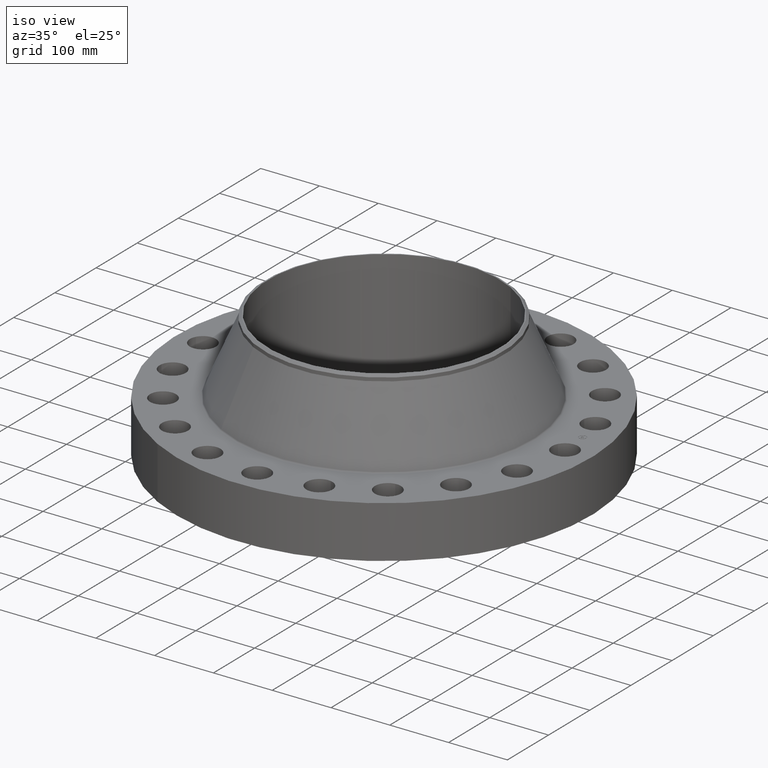
[diagram: clean part render]
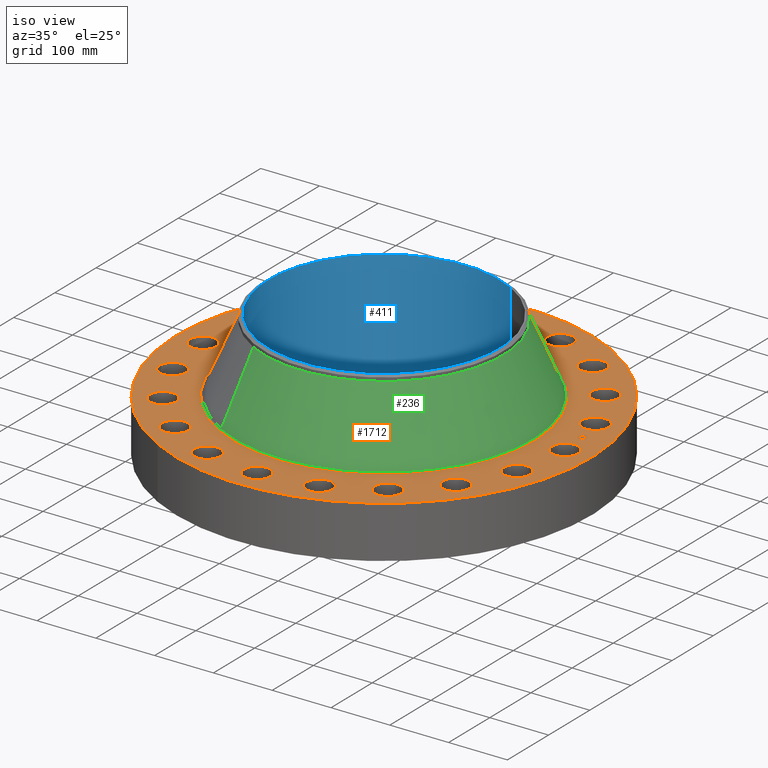
[diagram: same view with three faces highlighted in distinct colors, each labeled with its STEP entity id]
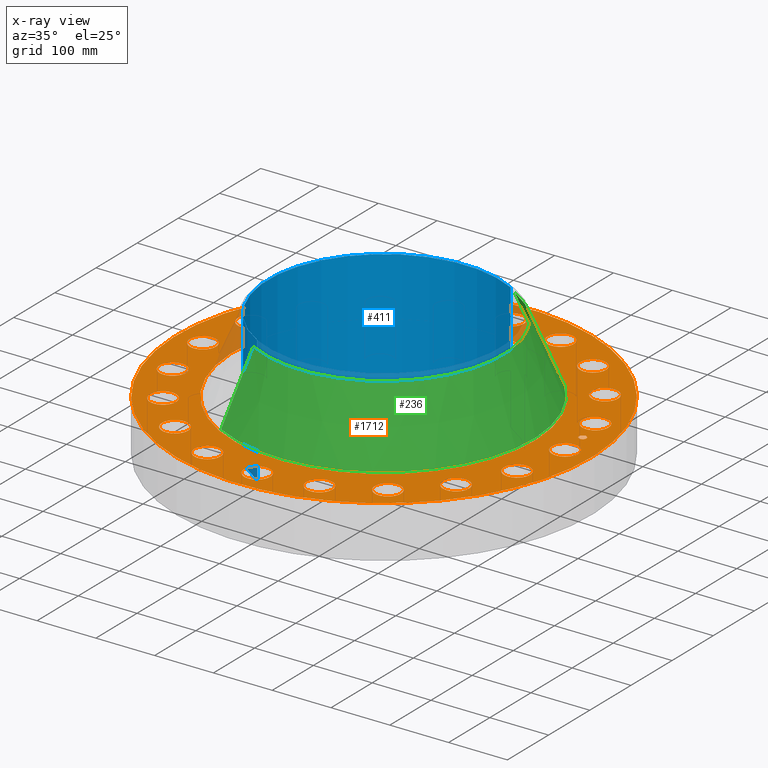
[diagram: x-ray of the same camera — body ghosted, the three highlighted faces saturated]
A machine part, iso view with three faces highlighted in distinct colors.
The next image is the same camera in x-ray (body ghosted, the three faces saturated) — at least one of them is partly hidden behind the body in this view.
Their STEP definitions:

[orange] entity #1712 — the highlighted planar face has unit normal (0, 0, -1).
#65=AXIS2_PLACEMENT_3D('Circle Axis2P3D',#63,#64,$) ;
#82=AXIS2_PLACEMENT_3D('Circle Axis2P3D',#80,#81,$) ;
#115=AXIS2_PLACEMENT_3D('Circle Axis2P3D',#113,#114,$) ;
#139=AXIS2_PLACEMENT_3D('Circle Axis2P3D',#137,#138,$) ;
#156=AXIS2_PLACEMENT_3D('Circle Axis2P3D',#154,#155,$) ;
#191=AXIS2_PLACEMENT_3D('Circle Axis2P3D',#189,#190,$) ;
#805=AXIS2_PLACEMENT_3D('Circle Axis2P3D',#803,#804,$) ;
#817=AXIS2_PLACEMENT_3D('Circle Axis2P3D',#815,#816,$) ;
#848=AXIS2_PLACEMENT_3D('Circle Axis2P3D',#846,#847,$) ;
#860=AXIS2_PLACEMENT_3D('Circle Axis2P3D',#858,#859,$) ;
#891=AXIS2_PLACEMENT_3D('Circle Axis2P3D',#889,#890,$) ;
#903=AXIS2_PLACEMENT_3D('Circle Axis2P3D',#901,#902,$) ;
#934=AXIS2_PLACEMENT_3D('Circle Axis2P3D',#932,#933,$) ;
#946=AXIS2_PLACEMENT_3D('Circle Axis2P3D',#944,#945,$) ;
#977=AXIS2_PLACEMENT_3D('Circle Axis2P3D',#975,#976,$) ;
#989=AXIS2_PLACEMENT_3D('Circle Axis2P3D',#987,#988,$) ;
#1020=AXIS2_PLACEMENT_3D('Circle Axis2P3D',#1018,#1019,$) ;
#1032=AXIS2_PLACEMENT_3D('Circle Axis2P3D',#1030,#1031,$) ;
#1063=AXIS2_PLACEMENT_3D('Circle Axis2P3D',#1061,#1062,$) ;
#1075=AXIS2_PLACEMENT_3D('Circle Axis2P3D',#1073,#1074,$) ;
#1106=AXIS2_PLACEMENT_3D('Circle Axis2P3D',#1104,#1105,$) ;
#1118=AXIS2_PLACEMENT_3D('Circle Axis2P3D',#1116,#1117,$) ;
#1149=AXIS2_PLACEMENT_3D('Circle Axis2P3D',#1147,#1148,$) ;
#1161=AXIS2_PLACEMENT_3D('Circle Axis2P3D',#1159,#1160,$) ;
#1192=AXIS2_PLACEMENT_3D('Circle Axis2P3D',#1190,#1191,$) ;
#1204=AXIS2_PLACEMENT_3D('Circle Axis2P3D',#1202,#1203,$) ;
#1235=AXIS2_PLACEMENT_3D('Circle Axis2P3D',#1233,#1234,$) ;
#1247=AXIS2_PLACEMENT_3D('Circle Axis2P3D',#1245,#1246,$) ;
#1278=AXIS2_PLACEMENT_3D('Circle Axis2P3D',#1276,#1277,$) ;
#1290=AXIS2_PLACEMENT_3D('Circle Axis2P3D',#1288,#1289,$) ;
#1321=AXIS2_PLACEMENT_3D('Circle Axis2P3D',#1319,#1320,$) ;
#1333=AXIS2_PLACEMENT_3D('Circle Axis2P3D',#1331,#1332,$) ;
#1364=AXIS2_PLACEMENT_3D('Circle Axis2P3D',#1362,#1363,$) ;
#1376=AXIS2_PLACEMENT_3D('Circle Axis2P3D',#1374,#1375,$) ;
#1407=AXIS2_PLACEMENT_3D('Circle Axis2P3D',#1405,#1406,$) ;
#1419=AXIS2_PLACEMENT_3D('Circle Axis2P3D',#1417,#1418,$) ;
#1450=AXIS2_PLACEMENT_3D('Circle Axis2P3D',#1448,#1449,$) ;
#1462=AXIS2_PLACEMENT_3D('Circle Axis2P3D',#1460,#1461,$) ;
#1493=AXIS2_PLACEMENT_3D('Circle Axis2P3D',#1491,#1492,$) ;
#1505=AXIS2_PLACEMENT_3D('Circle Axis2P3D',#1503,#1504,$) ;
#1536=AXIS2_PLACEMENT_3D('Circle Axis2P3D',#1534,#1535,$) ;
#1548=AXIS2_PLACEMENT_3D('Circle Axis2P3D',#1546,#1547,$) ;
#1579=AXIS2_PLACEMENT_3D('Circle Axis2P3D',#1577,#1578,$) ;
#1591=AXIS2_PLACEMENT_3D('Circle Axis2P3D',#1589,#1590,$) ;
#1604=AXIS2_PLACEMENT_3D('Plane Axis2P3D',#1601,#1602,#1603) ;
#1696=AXIS2_PLACEMENT_3D('Circle Axis2P3D',#1694,#1695,$) ;
#1705=AXIS2_PLACEMENT_3D('Circle Axis2P3D',#1703,#1704,$) ;
#46=CARTESIAN_POINT('Vertex',(11.3571152584,0.41949734628,3.50000000001)) ;
#60=CARTESIAN_POINT('Vertex',(12.8928847417,-0.41949734628,3.50000000001)) ;
#63=CARTESIAN_POINT('Axis2P3D Location',(12.125,0.,3.50000000001)) ;
#80=CARTESIAN_POINT('Axis2P3D Location',(12.125,0.,3.50000000001)) ;
#110=CARTESIAN_POINT('Vertex',(-6.65202934816,-12.1764580463,3.50000000001)) ;
#113=CARTESIAN_POINT('Axis2P3D Location',(0.,0.,3.50000000001)) ;
#117=CARTESIAN_POINT('Vertex',(6.65202934816,12.1764580463,3.50000000001)) ;
#137=CARTESIAN_POINT('Axis2P3D Location',(0.,0.,3.50000000001)) ;
#154=CARTESIAN_POINT('Axis2P3D Location',(0.,0.,3.50000000001)) ;
#158=CARTESIAN_POINT('Vertex',(4.83208072659,8.84506444035,3.50000000001)) ;
#160=CARTESIAN_POINT('Vertex',(-4.83208072659,-8.84506444035,3.50000000001)) ;
#189=CARTESIAN_POINT('Axis2P3D Location',(0.,0.,3.50000000001)) ;
#793=CARTESIAN_POINT('Vertex',(-10.9308902819,3.11057593717,3.50000000001)) ;
#800=CARTESIAN_POINT('Vertex',(-12.1322302383,4.38308617645,3.50000000001)) ;
#803=CARTESIAN_POINT('Axis2P3D Location',(-11.5315602601,3.74683105681,3.50000000001)) ;
#815=CARTESIAN_POINT('Axis2P3D Location',(-11.5315602601,3.74683105681,3.50000000001)) ;
#836=CARTESIAN_POINT('Vertex',(9.43467360463,-6.33616437523,3.50000000001)) ;
#843=CARTESIAN_POINT('Vertex',(10.183988509,-7.91762799292,3.50000000001)) ;
#846=CARTESIAN_POINT('Axis2P3D Location',(9.80933105684,-7.12689618407,3.50000000001)) ;
#858=CARTESIAN_POINT('Axis2P3D Location',(9.80933105684,-7.12689618407,3.50000000001)) ;
#879=CARTESIAN_POINT('Vertex',(-9.43467360463,6.33616437523,3.50000000001)) ;
#886=CARTESIAN_POINT('Vertex',(-10.183988509,7.91762799292,3.50000000001)) ;
#889=CARTESIAN_POINT('Axis2P3D Location',(-9.80933105684,7.12689618407,3.50000000001)) ;
#901=CARTESIAN_POINT('Axis2P3D Location',(-9.80933105684,7.12689618407,3.50000000001)) ;
#922=CARTESIAN_POINT('Vertex',(7.0149253397,-8.94152489759,3.50000000001)) ;
#929=CARTESIAN_POINT('Vertex',(7.23886702845,-10.6771372161,3.50000000001)) ;
#932=CARTESIAN_POINT('Axis2P3D Location',(7.12689618407,-9.80933105684,3.50000000001)) ;
#944=CARTESIAN_POINT('Axis2P3D Location',(7.12689618407,-9.80933105684,3.50000000001)) ;
#965=CARTESIAN_POINT('Vertex',(-7.0149253397,8.94152489759,3.50000000001)) ;
#972=CARTESIAN_POINT('Vertex',(-7.23886702845,10.6771372161,3.50000000001)) ;
#975=CARTESIAN_POINT('Axis2P3D Location',(-7.12689618407,9.80933105684,3.50000000001)) ;
#987=CARTESIAN_POINT('Axis2P3D Location',(-7.12689618407,9.80933105684,3.50000000001)) ;
#1008=CARTESIAN_POINT('Vertex',(3.90850730667,-10.6716266637,3.50000000001)) ;
#1015=CARTESIAN_POINT('Vertex',(3.58515480696,-12.3914938565,3.50000000001)) ;
#1018=CARTESIAN_POINT('Axis2P3D Location',(3.74683105681,-11.5315602601,3.50000000001)) ;
#1030=CARTESIAN_POINT('Axis2P3D Location',(3.74683105681,-11.5315602601,3.50000000001)) ;
#1051=CARTESIAN_POINT('Vertex',(-3.90850730667,10.6716266637,3.50000000001)) ;
#1058=CARTESIAN_POINT('Vertex',(-3.58515480696,12.3914938565,3.50000000001)) ;
#1061=CARTESIAN_POINT('Axis2P3D Location',(-3.74683105681,11.5315602601,3.50000000001)) ;
#1073=CARTESIAN_POINT('Axis2P3D Location',(-3.74683105681,11.5315602601,3.50000000001)) ;
#1094=CARTESIAN_POINT('Vertex',(0.41949734628,-11.3571152584,3.50000000001)) ;
#1101=CARTESIAN_POINT('Vertex',(-0.41949734628,-12.8928847417,3.50000000001)) ;
#1104=CARTESIAN_POINT('Axis2P3D Location',(3.43473295671E-015,-12.125,3.50000000001)) ;
#1116=CARTESIAN_POINT('Axis2P3D Location',(3.43473295671E-015,-12.125,3.50000000001)) ;
#1137=CARTESIAN_POINT('Vertex',(-0.41949734628,11.3571152584,3.50000000001)) ;
#1144=CARTESIAN_POINT('Vertex',(0.41949734628,12.8928847417,3.50000000001)) ;
#1147=CARTESIAN_POINT('Axis2P3D Location',(-1.29964897049E-014,12.125,3.50000000001)) ;
#1159=CARTESIAN_POINT('Axis2P3D Location',(-1.29964897049E-014,12.125,3.50000000001)) ;
#1180=CARTESIAN_POINT('Vertex',(-3.11057593717,-10.9308902819,3.50000000001)) ;
#1187=CARTESIAN_POINT('Vertex',(-4.38308617645,-12.1322302383,3.50000000001)) ;
#1190=CARTESIAN_POINT('Axis2P3D Location',(-3.74683105681,-11.5315602601,3.50000000001)) ;
#1202=CARTESIAN_POINT('Axis2P3D Location',(-3.74683105681,-11.5315602601,3.50000000001)) ;
#1223=CARTESIAN_POINT('Vertex',(3.11057593717,10.9308902819,3.50000000001)) ;
#1230=CARTESIAN_POINT('Vertex',(4.38308617645,12.1322302383,3.50000000001)) ;
#1233=CARTESIAN_POINT('Axis2P3D Location',(3.74683105681,11.5315602601,3.50000000001)) ;
#1245=CARTESIAN_POINT('Axis2P3D Location',(3.74683105681,11.5315602601,3.50000000001)) ;
#1266=CARTESIAN_POINT('Vertex',(-6.33616437523,-9.43467360463,3.50000000001)) ;
#1273=CARTESIAN_POINT('Vertex',(-7.91762799292,-10.183988509,3.50000000001)) ;
#1276=CARTESIAN_POINT('Axis2P3D Location',(-7.12689618407,-9.80933105684,3.50000000001)) ;
#1288=CARTESIAN_POINT('Axis2P3D Location',(-7.12689618407,-9.80933105684,3.50000000001)) ;
#1309=CARTESIAN_POINT('Vertex',(6.33616437523,9.43467360463,3.50000000001)) ;
#1316=CARTESIAN_POINT('Vertex',(7.91762799292,10.183988509,3.50000000001)) ;
#1319=CARTESIAN_POINT('Axis2P3D Location',(7.12689618407,9.80933105684,3.50000000001)) ;
#1331=CARTESIAN_POINT('Axis2P3D Location',(7.12689618407,9.80933105684,3.50000000001)) ;
#1352=CARTESIAN_POINT('Vertex',(-8.94152489759,-7.0149253397,3.50000000001)) ;
#1359=CARTESIAN_POINT('Vertex',(-10.6771372161,-7.23886702845,3.50000000001)) ;
#1362=CARTESIAN_POINT('Axis2P3D Location',(-9.80933105684,-7.12689618407,3.50000000001)) ;
#1374=CARTESIAN_POINT('Axis2P3D Location',(-9.80933105684,-7.12689618407,3.50000000001)) ;
#1395=CARTESIAN_POINT('Vertex',(8.94152489759,7.0149253397,3.50000000001)) ;
#1402=CARTESIAN_POINT('Vertex',(10.6771372161,7.23886702845,3.50000000001)) ;
#1405=CARTESIAN_POINT('Axis2P3D Location',(9.80933105684,7.12689618407,3.50000000001)) ;
#1417=CARTESIAN_POINT('Axis2P3D Location',(9.80933105684,7.12689618407,3.50000000001)) ;
#1438=CARTESIAN_POINT('Vertex',(-10.6716266637,-3.90850730667,3.50000000001)) ;
#1445=CARTESIAN_POINT('Vertex',(-12.3914938565,-3.58515480696,3.50000000001)) ;
#1448=CARTESIAN_POINT('Axis2P3D Location',(-11.5315602601,-3.74683105681,3.50000000001)) ;
#1460=CARTESIAN_POINT('Axis2P3D Location',(-11.5315602601,-3.74683105681,3.50000000001)) ;
#1481=CARTESIAN_POINT('Vertex',(10.6716266637,3.90850730667,3.50000000001)) ;
#1488=CARTESIAN_POINT('Vertex',(12.3914938565,3.58515480696,3.50000000001)) ;
#1491=CARTESIAN_POINT('Axis2P3D Location',(11.5315602601,3.74683105681,3.50000000001)) ;
#1503=CARTESIAN_POINT('Axis2P3D Location',(11.5315602601,3.74683105681,3.50000000001)) ;
#1524=CARTESIAN_POINT('Vertex',(-11.3571152584,-0.41949734628,3.50000000001)) ;
#1531=CARTESIAN_POINT('Vertex',(-12.8928847417,0.41949734628,3.50000000001)) ;
#1534=CARTESIAN_POINT('Axis2P3D Location',(-12.125,-6.86946591343E-015,3.50000000001)) ;
#1546=CARTESIAN_POINT('Axis2P3D Location',(-12.125,-6.86946591343E-015,3.50000000001)) ;
#1567=CARTESIAN_POINT('Vertex',(10.9308902819,-3.11057593717,3.50000000001)) ;
#1574=CARTESIAN_POINT('Vertex',(12.1322302383,-4.38308617645,3.50000000001)) ;
#1577=CARTESIAN_POINT('Axis2P3D Location',(11.5315602601,-3.74683105681,3.50000000001)) ;
#1589=CARTESIAN_POINT('Axis2P3D Location',(11.5315602601,-3.74683105681,3.50000000001)) ;
#1601=CARTESIAN_POINT('Axis2P3D Location',(0.,13.8750000001,3.50000000001)) ;
#1694=CARTESIAN_POINT('Axis2P3D Location',(11.9757211298,1.89676788862,3.50000000001)) ;
#1698=CARTESIAN_POINT('Vertex',(11.9370035997,2.14122075292,3.50000000001)) ;
#1700=CARTESIAN_POINT('Vertex',(12.0144386599,1.65231502432,3.50000000001)) ;
#1703=CARTESIAN_POINT('Axis2P3D Location',(11.9757211298,1.89676788862,3.50000000001)) ;
#64=DIRECTION('Axis2P3D Direction',(0.,-0.,-0.0393700787402)) ;
#81=DIRECTION('Axis2P3D Direction',(0.,-0.,-0.0393700787402)) ;
#114=DIRECTION('Axis2P3D Direction',(0.,0.,-0.0393700787402)) ;
#138=DIRECTION('Axis2P3D Direction',(0.,0.,-0.0393700787402)) ;
#155=DIRECTION('Axis2P3D Direction',(0.,0.,-0.0393700787402)) ;
#190=DIRECTION('Axis2P3D Direction',(0.,0.,-0.0393700787402)) ;
#804=DIRECTION('Axis2P3D Direction',(0.,0.,-0.0393700787402)) ;
#816=DIRECTION('Axis2P3D Direction',(0.,0.,-0.0393700787402)) ;
#847=DIRECTION('Axis2P3D Direction',(0.,-0.,-0.0393700787402)) ;
#859=DIRECTION('Axis2P3D Direction',(0.,-0.,-0.0393700787402)) ;
#890=DIRECTION('Axis2P3D Direction',(0.,0.,-0.0393700787402)) ;
#902=DIRECTION('Axis2P3D Direction',(0.,0.,-0.0393700787402)) ;
#933=DIRECTION('Axis2P3D Direction',(0.,-0.,-0.0393700787402)) ;
#945=DIRECTION('Axis2P3D Direction',(0.,-0.,-0.0393700787402)) ;
#976=DIRECTION('Axis2P3D Direction',(0.,0.,-0.0393700787402)) ;
#988=DIRECTION('Axis2P3D Direction',(0.,0.,-0.0393700787402)) ;
#1019=DIRECTION('Axis2P3D Direction',(0.,-0.,-0.0393700787402)) ;
#1031=DIRECTION('Axis2P3D Direction',(0.,-0.,-0.0393700787402)) ;
#1062=DIRECTION('Axis2P3D Direction',(0.,0.,-0.0393700787402)) ;
#1074=DIRECTION('Axis2P3D Direction',(0.,0.,-0.0393700787402)) ;
#1105=DIRECTION('Axis2P3D Direction',(0.,-0.,-0.0393700787402)) ;
#1117=DIRECTION('Axis2P3D Direction',(0.,-0.,-0.0393700787402)) ;
#1148=DIRECTION('Axis2P3D Direction',(0.,0.,-0.0393700787402)) ;
#1160=DIRECTION('Axis2P3D Direction',(0.,0.,-0.0393700787402)) ;
#1191=DIRECTION('Axis2P3D Direction',(-0.,0.,-0.0393700787402)) ;
#1203=DIRECTION('Axis2P3D Direction',(-0.,0.,-0.0393700787402)) ;
#1234=DIRECTION('Axis2P3D Direction',(0.,0.,-0.0393700787402)) ;
#1246=DIRECTION('Axis2P3D Direction',(0.,0.,-0.0393700787402)) ;
#1277=DIRECTION('Axis2P3D Direction',(-0.,0.,-0.0393700787402)) ;
#1289=DIRECTION('Axis2P3D Direction',(-0.,0.,-0.0393700787402)) ;
#1320=DIRECTION('Axis2P3D Direction',(0.,0.,-0.0393700787402)) ;
#1332=DIRECTION('Axis2P3D Direction',(0.,0.,-0.0393700787402)) ;
#1363=DIRECTION('Axis2P3D Direction',(-0.,0.,-0.0393700787402)) ;
#1375=DIRECTION('Axis2P3D Direction',(-0.,0.,-0.0393700787402)) ;
#1406=DIRECTION('Axis2P3D Direction',(0.,0.,-0.0393700787402)) ;
#1418=DIRECTION('Axis2P3D Direction',(0.,0.,-0.0393700787402)) ;
#1449=DIRECTION('Axis2P3D Direction',(-0.,0.,-0.0393700787402)) ;
#1461=DIRECTION('Axis2P3D Direction',(-0.,0.,-0.0393700787402)) ;
#1492=DIRECTION('Axis2P3D Direction',(0.,0.,-0.0393700787402)) ;
#1504=DIRECTION('Axis2P3D Direction',(0.,0.,-0.0393700787402)) ;
#1535=DIRECTION('Axis2P3D Direction',(-0.,0.,-0.0393700787402)) ;
#1547=DIRECTION('Axis2P3D Direction',(-0.,0.,-0.0393700787402)) ;
#1578=DIRECTION('Axis2P3D Direction',(0.,-0.,-0.0393700787402)) ;
#1590=DIRECTION('Axis2P3D Direction',(0.,-0.,-0.0393700787402)) ;
#1602=DIRECTION('Axis2P3D Direction',(0.,0.,-0.0393700787402)) ;
#1603=DIRECTION('Axis2P3D XDirection',(0.0393700787402,0.,0.)) ;
#1695=DIRECTION('Axis2P3D Direction',(0.,0.,-0.0393700787402)) ;
#1704=DIRECTION('Axis2P3D Direction',(0.,0.,-0.0393700787402)) ;
#1607=ORIENTED_EDGE('',*,*,#141,.F.) ;
#1608=ORIENTED_EDGE('',*,*,#119,.F.) ;
#1611=ORIENTED_EDGE('',*,*,#67,.T.) ;
#1612=ORIENTED_EDGE('',*,*,#84,.T.) ;
#1615=ORIENTED_EDGE('',*,*,#193,.T.) ;
#1616=ORIENTED_EDGE('',*,*,#162,.T.) ;
#1619=ORIENTED_EDGE('',*,*,#1593,.T.) ;
#1620=ORIENTED_EDGE('',*,*,#1581,.T.) ;
#1623=ORIENTED_EDGE('',*,*,#862,.T.) ;
#1624=ORIENTED_EDGE('',*,*,#850,.T.) ;
#1627=ORIENTED_EDGE('',*,*,#948,.T.) ;
#1628=ORIENTED_EDGE('',*,*,#936,.T.) ;
#1631=ORIENTED_EDGE('',*,*,#1034,.T.) ;
#1632=ORIENTED_EDGE('',*,*,#1022,.T.) ;
#1635=ORIENTED_EDGE('',*,*,#1120,.T.) ;
#1636=ORIENTED_EDGE('',*,*,#1108,.T.) ;
#1639=ORIENTED_EDGE('',*,*,#1206,.T.) ;
#1640=ORIENTED_EDGE('',*,*,#1194,.T.) ;
#1643=ORIENTED_EDGE('',*,*,#1292,.T.) ;
#1644=ORIENTED_EDGE('',*,*,#1280,.T.) ;
#1647=ORIENTED_EDGE('',*,*,#1378,.T.) ;
#1648=ORIENTED_EDGE('',*,*,#1366,.T.) ;
#1651=ORIENTED_EDGE('',*,*,#1464,.T.) ;
#1652=ORIENTED_EDGE('',*,*,#1452,.T.) ;
#1655=ORIENTED_EDGE('',*,*,#1550,.T.) ;
#1656=ORIENTED_EDGE('',*,*,#1538,.T.) ;
#1659=ORIENTED_EDGE('',*,*,#819,.T.) ;
#1660=ORIENTED_EDGE('',*,*,#807,.T.) ;
#1663=ORIENTED_EDGE('',*,*,#905,.T.) ;
#1664=ORIENTED_EDGE('',*,*,#893,.T.) ;
#1667=ORIENTED_EDGE('',*,*,#991,.T.) ;
#1668=ORIENTED_EDGE('',*,*,#979,.T.) ;
#1671=ORIENTED_EDGE('',*,*,#1077,.T.) ;
#1672=ORIENTED_EDGE('',*,*,#1065,.T.) ;
#1675=ORIENTED_EDGE('',*,*,#1163,.T.) ;
#1676=ORIENTED_EDGE('',*,*,#1151,.T.) ;
#1679=ORIENTED_EDGE('',*,*,#1249,.T.) ;
#1680=ORIENTED_EDGE('',*,*,#1237,.T.) ;
#1683=ORIENTED_EDGE('',*,*,#1335,.T.) ;
#1684=ORIENTED_EDGE('',*,*,#1323,.T.) ;
#1687=ORIENTED_EDGE('',*,*,#1421,.T.) ;
#1688=ORIENTED_EDGE('',*,*,#1409,.T.) ;
#1691=ORIENTED_EDGE('',*,*,#1507,.T.) ;
#1692=ORIENTED_EDGE('',*,*,#1495,.T.) ;
#1709=ORIENTED_EDGE('',*,*,#1702,.T.) ;
#1710=ORIENTED_EDGE('',*,*,#1707,.T.) ;
#1613=FACE_BOUND('',#1610,.T.) ;
#1617=FACE_BOUND('',#1614,.T.) ;
#1621=FACE_BOUND('',#1618,.T.) ;
#1625=FACE_BOUND('',#1622,.T.) ;
#1629=FACE_BOUND('',#1626,.T.) ;
#1633=FACE_BOUND('',#1630,.T.) ;
#1637=FACE_BOUND('',#1634,.T.) ;
#1641=FACE_BOUND('',#1638,.T.) ;
#1645=FACE_BOUND('',#1642,.T.) ;
#1649=FACE_BOUND('',#1646,.T.) ;
#1653=FACE_BOUND('',#1650,.T.) ;
#1657=FACE_BOUND('',#1654,.T.) ;
#1661=FACE_BOUND('',#1658,.T.) ;
#1665=FACE_BOUND('',#1662,.T.) ;
#1669=FACE_BOUND('',#1666,.T.) ;
#1673=FACE_BOUND('',#1670,.T.) ;
#1677=FACE_BOUND('',#1674,.T.) ;
#1681=FACE_BOUND('',#1678,.T.) ;
#1685=FACE_BOUND('',#1682,.T.) ;
#1689=FACE_BOUND('',#1686,.T.) ;
#1693=FACE_BOUND('',#1690,.T.) ;
#1711=FACE_BOUND('',#1708,.T.) ;
#1712=ADVANCED_FACE('PartBody',(#1609,#1613,#1617,#1621,#1625,#1629,#1633,#1637,#1641,#1645,#1649,#1653,#1657,#1661,#1665,#1669,#1673,#1677,#1681,#1685,#1689,#1693,#1711),#1605,.F.) ;
#66=CIRCLE('generated circle',#65,0.875000000004) ;
#83=CIRCLE('generated circle',#82,0.875000000004) ;
#116=CIRCLE('generated circle',#115,13.8750000001) ;
#140=CIRCLE('generated circle',#139,13.8750000001) ;
#157=CIRCLE('generated circle',#156,10.0788972166) ;
#192=CIRCLE('generated circle',#191,10.0788972166) ;
#806=CIRCLE('generated circle',#805,0.875000000004) ;
#818=CIRCLE('generated circle',#817,0.875000000004) ;
#849=CIRCLE('generated circle',#848,0.875000000004) ;
#861=CIRCLE('generated circle',#860,0.875000000004) ;
#892=CIRCLE('generated circle',#891,0.875000000004) ;
#904=CIRCLE('generated circle',#903,0.875000000004) ;
#935=CIRCLE('generated circle',#934,0.875000000004) ;
#947=CIRCLE('generated circle',#946,0.875000000004) ;
#978=CIRCLE('generated circle',#977,0.875000000004) ;
#990=CIRCLE('generated circle',#989,0.875000000004) ;
#1021=CIRCLE('generated circle',#1020,0.875000000004) ;
#1033=CIRCLE('generated circle',#1032,0.875000000004) ;
#1064=CIRCLE('generated circle',#1063,0.875000000004) ;
#1076=CIRCLE('generated circle',#1075,0.875000000004) ;
#1107=CIRCLE('generated circle',#1106,0.875000000004) ;
#1119=CIRCLE('generated circle',#1118,0.875000000004) ;
#1150=CIRCLE('generated circle',#1149,0.875000000004) ;
#1162=CIRCLE('generated circle',#1161,0.875000000004) ;
#1193=CIRCLE('generated circle',#1192,0.875000000004) ;
#1205=CIRCLE('generated circle',#1204,0.875000000004) ;
#1236=CIRCLE('generated circle',#1235,0.875000000004) ;
#1248=CIRCLE('generated circle',#1247,0.875000000004) ;
#1279=CIRCLE('generated circle',#1278,0.875000000003) ;
#1291=CIRCLE('generated circle',#1290,0.875000000003) ;
#1322=CIRCLE('generated circle',#1321,0.875000000003) ;
#1334=CIRCLE('generated circle',#1333,0.875000000003) ;
#1365=CIRCLE('generated circle',#1364,0.875000000004) ;
#1377=CIRCLE('generated circle',#1376,0.875000000004) ;
#1408=CIRCLE('generated circle',#1407,0.875000000004) ;
#1420=CIRCLE('generated circle',#1419,0.875000000004) ;
#1451=CIRCLE('generated circle',#1450,0.875000000004) ;
#1463=CIRCLE('generated circle',#1462,0.875000000004) ;
#1494=CIRCLE('generated circle',#1493,0.875000000004) ;
#1506=CIRCLE('generated circle',#1505,0.875000000004) ;
#1537=CIRCLE('generated circle',#1536,0.875000000004) ;
#1549=CIRCLE('generated circle',#1548,0.875000000004) ;
#1580=CIRCLE('generated circle',#1579,0.875000000004) ;
#1592=CIRCLE('generated circle',#1591,0.875000000004) ;
#1697=CIRCLE('generated circle',#1696,0.247500000001) ;
#1706=CIRCLE('generated circle',#1705,0.247500000001) ;
#67=EDGE_CURVE('',#47,#61,#66,.T.) ;
#84=EDGE_CURVE('',#61,#47,#83,.T.) ;
#119=EDGE_CURVE('',#111,#118,#116,.T.) ;
#141=EDGE_CURVE('',#118,#111,#140,.T.) ;
#162=EDGE_CURVE('',#159,#161,#157,.T.) ;
#193=EDGE_CURVE('',#161,#159,#192,.T.) ;
#807=EDGE_CURVE('',#794,#801,#806,.T.) ;
#819=EDGE_CURVE('',#801,#794,#818,.T.) ;
#850=EDGE_CURVE('',#837,#844,#849,.T.) ;
#862=EDGE_CURVE('',#844,#837,#861,.T.) ;
#893=EDGE_CURVE('',#880,#887,#892,.T.) ;
#905=EDGE_CURVE('',#887,#880,#904,.T.) ;
#936=EDGE_CURVE('',#923,#930,#935,.T.) ;
#948=EDGE_CURVE('',#930,#923,#947,.T.) ;
#979=EDGE_CURVE('',#966,#973,#978,.T.) ;
#991=EDGE_CURVE('',#973,#966,#990,.T.) ;
#1022=EDGE_CURVE('',#1009,#1016,#1021,.T.) ;
#1034=EDGE_CURVE('',#1016,#1009,#1033,.T.) ;
#1065=EDGE_CURVE('',#1052,#1059,#1064,.T.) ;
#1077=EDGE_CURVE('',#1059,#1052,#1076,.T.) ;
#1108=EDGE_CURVE('',#1095,#1102,#1107,.T.) ;
#1120=EDGE_CURVE('',#1102,#1095,#1119,.T.) ;
#1151=EDGE_CURVE('',#1138,#1145,#1150,.T.) ;
#1163=EDGE_CURVE('',#1145,#1138,#1162,.T.) ;
#1194=EDGE_CURVE('',#1181,#1188,#1193,.T.) ;
#1206=EDGE_CURVE('',#1188,#1181,#1205,.T.) ;
#1237=EDGE_CURVE('',#1224,#1231,#1236,.T.) ;
#1249=EDGE_CURVE('',#1231,#1224,#1248,.T.) ;
#1280=EDGE_CURVE('',#1267,#1274,#1279,.T.) ;
#1292=EDGE_CURVE('',#1274,#1267,#1291,.T.) ;
#1323=EDGE_CURVE('',#1310,#1317,#1322,.T.) ;
#1335=EDGE_CURVE('',#1317,#1310,#1334,.T.) ;
#1366=EDGE_CURVE('',#1353,#1360,#1365,.T.) ;
#1378=EDGE_CURVE('',#1360,#1353,#1377,.T.) ;
#1409=EDGE_CURVE('',#1396,#1403,#1408,.T.) ;
#1421=EDGE_CURVE('',#1403,#1396,#1420,.T.) ;
#1452=EDGE_CURVE('',#1439,#1446,#1451,.T.) ;
#1464=EDGE_CURVE('',#1446,#1439,#1463,.T.) ;
#1495=EDGE_CURVE('',#1482,#1489,#1494,.T.) ;
#1507=EDGE_CURVE('',#1489,#1482,#1506,.T.) ;
#1538=EDGE_CURVE('',#1525,#1532,#1537,.T.) ;
#1550=EDGE_CURVE('',#1532,#1525,#1549,.T.) ;
#1581=EDGE_CURVE('',#1568,#1575,#1580,.T.) ;
#1593=EDGE_CURVE('',#1575,#1568,#1592,.T.) ;
#1702=EDGE_CURVE('',#1699,#1701,#1697,.T.) ;
#1707=EDGE_CURVE('',#1701,#1699,#1706,.T.) ;
#1606=EDGE_LOOP('',(#1607,#1608)) ;
#1610=EDGE_LOOP('',(#1611,#1612)) ;
#1614=EDGE_LOOP('',(#1615,#1616)) ;
#1618=EDGE_LOOP('',(#1619,#1620)) ;
#1622=EDGE_LOOP('',(#1623,#1624)) ;
#1626=EDGE_LOOP('',(#1627,#1628)) ;
#1630=EDGE_LOOP('',(#1631,#1632)) ;
#1634=EDGE_LOOP('',(#1635,#1636)) ;
#1638=EDGE_LOOP('',(#1639,#1640)) ;
#1642=EDGE_LOOP('',(#1643,#1644)) ;
#1646=EDGE_LOOP('',(#1647,#1648)) ;
#1650=EDGE_LOOP('',(#1651,#1652)) ;
#1654=EDGE_LOOP('',(#1655,#1656)) ;
#1658=EDGE_LOOP('',(#1659,#1660)) ;
#1662=EDGE_LOOP('',(#1663,#1664)) ;
#1666=EDGE_LOOP('',(#1667,#1668)) ;
#1670=EDGE_LOOP('',(#1671,#1672)) ;
#1674=EDGE_LOOP('',(#1675,#1676)) ;
#1678=EDGE_LOOP('',(#1679,#1680)) ;
#1682=EDGE_LOOP('',(#1683,#1684)) ;
#1686=EDGE_LOOP('',(#1687,#1688)) ;
#1690=EDGE_LOOP('',(#1691,#1692)) ;
#1708=EDGE_LOOP('',(#1709,#1710)) ;
#1609=FACE_OUTER_BOUND('',#1606,.T.) ;
#1605=PLANE('',#1604) ;
#47=VERTEX_POINT('',#46) ;
#61=VERTEX_POINT('',#60) ;
#111=VERTEX_POINT('',#110) ;
#118=VERTEX_POINT('',#117) ;
#159=VERTEX_POINT('',#158) ;
#161=VERTEX_POINT('',#160) ;
#794=VERTEX_POINT('',#793) ;
#801=VERTEX_POINT('',#800) ;
#837=VERTEX_POINT('',#836) ;
#844=VERTEX_POINT('',#843) ;
#880=VERTEX_POINT('',#879) ;
#887=VERTEX_POINT('',#886) ;
#923=VERTEX_POINT('',#922) ;
#930=VERTEX_POINT('',#929) ;
#966=VERTEX_POINT('',#965) ;
#973=VERTEX_POINT('',#972) ;
#1009=VERTEX_POINT('',#1008) ;
#1016=VERTEX_POINT('',#1015) ;
#1052=VERTEX_POINT('',#1051) ;
#1059=VERTEX_POINT('',#1058) ;
#1095=VERTEX_POINT('',#1094) ;
#1102=VERTEX_POINT('',#1101) ;
#1138=VERTEX_POINT('',#1137) ;
#1145=VERTEX_POINT('',#1144) ;
#1181=VERTEX_POINT('',#1180) ;
#1188=VERTEX_POINT('',#1187) ;
#1224=VERTEX_POINT('',#1223) ;
#1231=VERTEX_POINT('',#1230) ;
#1267=VERTEX_POINT('',#1266) ;
#1274=VERTEX_POINT('',#1273) ;
#1310=VERTEX_POINT('',#1309) ;
#1317=VERTEX_POINT('',#1316) ;
#1353=VERTEX_POINT('',#1352) ;
#1360=VERTEX_POINT('',#1359) ;
#1396=VERTEX_POINT('',#1395) ;
#1403=VERTEX_POINT('',#1402) ;
#1439=VERTEX_POINT('',#1438) ;
#1446=VERTEX_POINT('',#1445) ;
#1482=VERTEX_POINT('',#1481) ;
#1489=VERTEX_POINT('',#1488) ;
#1525=VERTEX_POINT('',#1524) ;
#1532=VERTEX_POINT('',#1531) ;
#1568=VERTEX_POINT('',#1567) ;
#1575=VERTEX_POINT('',#1574) ;
#1699=VERTEX_POINT('',#1698) ;
#1701=VERTEX_POINT('',#1700) ;

[blue] entity #411 — the highlighted cylindrical surface (partial cylindrical patch) has radius 196.85 mm, axis along (0, 0, -1).
#356=AXIS2_PLACEMENT_3D('Circle Axis2P3D',#354,#355,$) ;
#384=AXIS2_PLACEMENT_3D('Cylinder Axis2P3D',#381,#382,#383) ;
#395=AXIS2_PLACEMENT_3D('Circle Axis2P3D',#393,#394,$) ;
#354=CARTESIAN_POINT('Axis2P3D Location',(0.,0.,8.50000000003)) ;
#358=CARTESIAN_POINT('Vertex',(-3.7155479242,-6.80126485468,8.50000000003)) ;
#360=CARTESIAN_POINT('Vertex',(3.7155479242,6.80126485468,8.50000000003)) ;
#381=CARTESIAN_POINT('Axis2P3D Location',(0.,0.,4.25000000002)) ;
#386=CARTESIAN_POINT('Line Origine',(-3.7155479242,-6.80126485468,4.25000000002)) ;
#390=CARTESIAN_POINT('Vertex',(-3.7155479242,-6.80126485468,-3.63663604917E-014)) ;
#393=CARTESIAN_POINT('Axis2P3D Location',(0.,0.,-3.8044807899E-014)) ;
#397=CARTESIAN_POINT('Vertex',(3.7155479242,6.80126485468,-3.63663604917E-014)) ;
#400=CARTESIAN_POINT('Line Origine',(3.7155479242,6.80126485468,4.25000000002)) ;
#355=DIRECTION('Axis2P3D Direction',(0.,0.,-0.0393700787402)) ;
#382=DIRECTION('Axis2P3D Direction',(0.,0.,-0.0393700787402)) ;
#383=DIRECTION('Axis2P3D XDirection',(0.0188750212049,0.0345504945626,0.)) ;
#387=DIRECTION('Vector Direction',(0.,0.,-0.0393700787402)) ;
#394=DIRECTION('Axis2P3D Direction',(0.,0.,-0.0393700787402)) ;
#401=DIRECTION('Vector Direction',(0.,0.,-0.0393700787402)) ;
#388=VECTOR('Line Direction',#387,0.0393700787402) ;
#402=VECTOR('Line Direction',#401,0.0393700787402) ;
#406=ORIENTED_EDGE('',*,*,#362,.F.) ;
#407=ORIENTED_EDGE('',*,*,#392,.T.) ;
#408=ORIENTED_EDGE('',*,*,#399,.T.) ;
#409=ORIENTED_EDGE('',*,*,#404,.F.) ;
#411=ADVANCED_FACE('PartBody',(#410),#385,.F.) ;
#357=CIRCLE('generated circle',#356,7.75000000003) ;
#396=CIRCLE('generated circle',#395,7.75000000003) ;
#385=CYLINDRICAL_SURFACE('generated cylinder',#384,7.75000000003) ;
#362=EDGE_CURVE('',#359,#361,#357,.T.) ;
#392=EDGE_CURVE('',#359,#391,#389,.T.) ;
#399=EDGE_CURVE('',#391,#398,#396,.T.) ;
#404=EDGE_CURVE('',#361,#398,#403,.T.) ;
#405=EDGE_LOOP('',(#406,#407,#408,#409)) ;
#410=FACE_OUTER_BOUND('',#405,.T.) ;
#389=LINE('Line',#386,#388) ;
#403=LINE('Line',#400,#402) ;
#359=VERTEX_POINT('',#358) ;
#361=VERTEX_POINT('',#360) ;
#391=VERTEX_POINT('',#390) ;
#398=VERTEX_POINT('',#397) ;

[green] entity #236 — the highlighted conical surface has half-angle 23.352 deg.
#172=AXIS2_PLACEMENT_3D('Circle Axis2P3D',#170,#171,$) ;
#209=AXIS2_PLACEMENT_3D('Cone Axis2P3D',#206,#207,#208) ;
#220=AXIS2_PLACEMENT_3D('Circle Axis2P3D',#218,#219,$) ;
#167=CARTESIAN_POINT('Vertex',(4.77926220952,8.74838079338,3.57243450135)) ;
#170=CARTESIAN_POINT('Axis2P3D Location',(0.,0.,3.57243450135)) ;
#174=CARTESIAN_POINT('Vertex',(-4.77926220952,-8.74838079338,3.57243450135)) ;
#206=CARTESIAN_POINT('Axis2P3D Location',(0.,0.,8.13236722847)) ;
#211=CARTESIAN_POINT('Line Origine',(4.30733325919,7.88452064427,5.85240086491)) ;
#215=CARTESIAN_POINT('Vertex',(3.83540430885,7.02066049515,8.13236722847)) ;
#218=CARTESIAN_POINT('Axis2P3D Location',(0.,0.,8.13236722847)) ;
#222=CARTESIAN_POINT('Vertex',(-3.83540430885,-7.02066049515,8.13236722847)) ;
#225=CARTESIAN_POINT('Line Origine',(-4.30733325919,-7.88452064427,5.85240086491)) ;
#171=DIRECTION('Axis2P3D Direction',(0.,0.,-0.0393700787402)) ;
#207=DIRECTION('Axis2P3D Direction',(0.,0.,-0.0393700787402)) ;
#208=DIRECTION('Axis2P3D XDirection',(-0.0188750212049,-0.0345504945626,0.)) ;
#212=DIRECTION('Vector Direction',(0.00748166496515,0.0136950958567,-0.0361451537392)) ;
#219=DIRECTION('Axis2P3D Direction',(0.,0.,-0.0393700787402)) ;
#226=DIRECTION('Vector Direction',(-0.00748166496515,-0.0136950958567,-0.0361451537392)) ;
#213=VECTOR('Line Direction',#212,0.0393700787402) ;
#227=VECTOR('Line Direction',#226,0.0393700787402) ;
#231=ORIENTED_EDGE('',*,*,#176,.F.) ;
#232=ORIENTED_EDGE('',*,*,#217,.T.) ;
#233=ORIENTED_EDGE('',*,*,#224,.T.) ;
#234=ORIENTED_EDGE('',*,*,#229,.F.) ;
#236=ADVANCED_FACE('PartBody',(#235),#210,.T.) ;
#173=CIRCLE('generated circle',#172,9.96872678798) ;
#221=CIRCLE('generated circle',#220,8.00000000003) ;
#210=CONICAL_SURFACE('Cone',#209,8.00000000003,0.407569570619) ;
#176=EDGE_CURVE('',#168,#175,#173,.T.) ;
#217=EDGE_CURVE('',#168,#216,#214,.F.) ;
#224=EDGE_CURVE('',#216,#223,#221,.T.) ;
#229=EDGE_CURVE('',#175,#223,#228,.F.) ;
#230=EDGE_LOOP('',(#231,#232,#233,#234)) ;
#235=FACE_OUTER_BOUND('',#230,.T.) ;
#214=LINE('Line',#211,#213) ;
#228=LINE('Line',#225,#227) ;
#168=VERTEX_POINT('',#167) ;
#175=VERTEX_POINT('',#174) ;
#216=VERTEX_POINT('',#215) ;
#223=VERTEX_POINT('',#222) ;